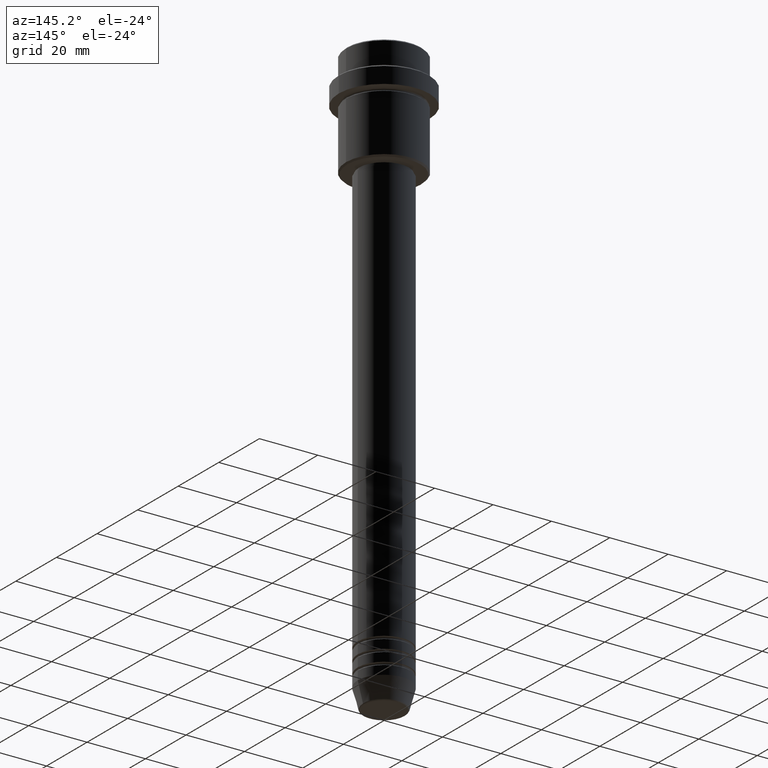
[diagram: clean part render]
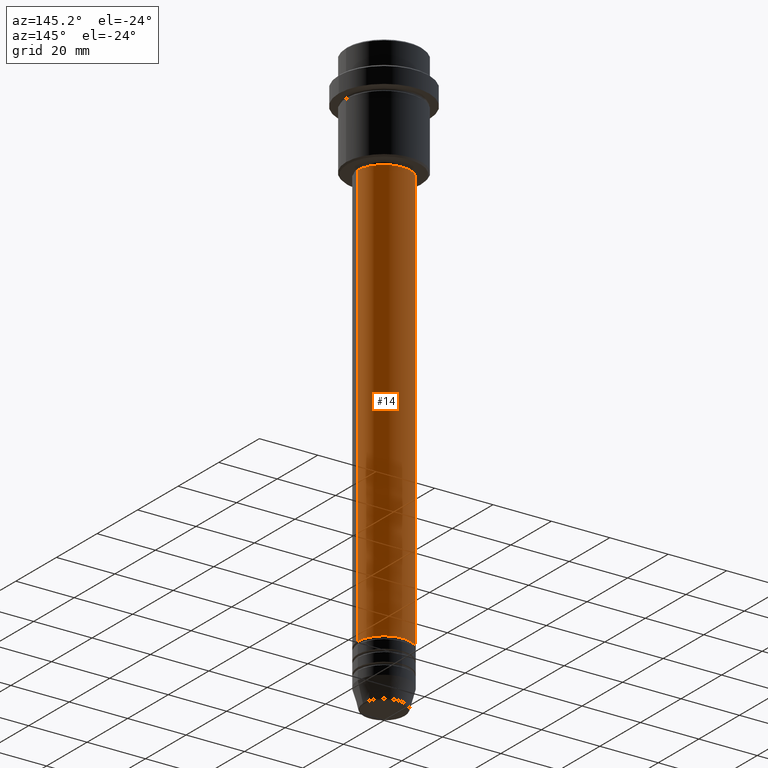
[diagram: same view with one face highlighted and labeled with its STEP entity id]
A machine part, auxiliary view. The second image highlights one B-rep face of the part: STEP entity #14.
In plain terms, the highlighted cylindrical surface (edge-blend (fillet) strip) has radius 9 mm, axis along (-0, -0, 1).
Its self-contained STEP definition (entity closure, byte-faithful):
#2 = CARTESIAN_POINT ( 'NONE',  ( 9.000000000000000000, 0.000000000000000000, -181.9999999999998863 ) ) ;
#14 = ADVANCED_FACE ( 'NONE', ( #341 ), #676, .T. ) ;
#49 = VERTEX_POINT ( 'NONE', #2 ) ;
#67 = ORIENTED_EDGE ( 'NONE', *, *, #829, .T. ) ;
#70 = ORIENTED_EDGE ( 'NONE', *, *, #978, .F. ) ;
#73 = CIRCLE ( 'NONE', #1401, 9.000000000000001776 ) ;
#89 = EDGE_CURVE ( 'NONE', #225, #455, #1360, .T. ) ;
#150 = CARTESIAN_POINT ( 'NONE',  ( -9.000000000000001776, 1.102182119232617911E-15, 0.000000000000000000 ) ) ;
#180 = CARTESIAN_POINT ( 'NONE',  ( 0.000000000000000000, 0.000000000000000000, -181.9999999999998863 ) ) ;
#189 = DIRECTION ( 'NONE',  ( 1.000000000000000000, 0.000000000000000000, 0.000000000000000000 ) ) ;
#225 = VERTEX_POINT ( 'NONE', #1378 ) ;
#299 = LINE ( 'NONE', #1373, #1173 ) ;
#329 = EDGE_CURVE ( 'NONE', #1353, #455, #73, .T. ) ;
#341 = FACE_OUTER_BOUND ( 'NONE', #481, .T. ) ;
#417 = DIRECTION ( 'NONE',  ( -0.000000000000000000, -0.000000000000000000, 1.000000000000000000 ) ) ;
#455 = VERTEX_POINT ( 'NONE', #545 ) ;
#481 = EDGE_LOOP ( 'NONE', ( #67, #796, #541, #70 ) ) ;
#498 = DIRECTION ( 'NONE',  ( -0.000000000000000000, -0.000000000000000000, 1.000000000000000000 ) ) ;
#521 = DIRECTION ( 'NONE',  ( -0.000000000000000000, -0.000000000000000000, 1.000000000000000000 ) ) ;
#541 = ORIENTED_EDGE ( 'NONE', *, *, #329, .F. ) ;
#545 = CARTESIAN_POINT ( 'NONE',  ( -9.000000000000001776, 1.102182119232617911E-15, -37.00000000000000711 ) ) ;
#619 = DIRECTION ( 'NONE',  ( 1.000000000000000000, 0.000000000000000000, 0.000000000000000000 ) ) ;
#654 = AXIS2_PLACEMENT_3D ( 'NONE', #180, #417, #619 ) ;
#676 = CYLINDRICAL_SURFACE ( 'NONE', #1311, 9.000000000000001776 ) ;
#744 = CIRCLE ( 'NONE', #654, 9.000000000000000000 ) ;
#796 = ORIENTED_EDGE ( 'NONE', *, *, #89, .T. ) ;
#829 = EDGE_CURVE ( 'NONE', #49, #225, #744, .T. ) ;
#970 = CARTESIAN_POINT ( 'NONE',  ( 0.000000000000000000, 0.000000000000000000, -37.00000000000000711 ) ) ;
#978 = EDGE_CURVE ( 'NONE', #49, #1353, #299, .T. ) ;
#1004 = DIRECTION ( 'NONE',  ( -0.000000000000000000, -0.000000000000000000, 1.000000000000000000 ) ) ;
#1076 = DIRECTION ( 'NONE',  ( -0.000000000000000000, -0.000000000000000000, 1.000000000000000000 ) ) ;
#1173 = VECTOR ( 'NONE', #1076, 1000.000000000000000 ) ;
#1311 = AXIS2_PLACEMENT_3D ( 'NONE', #1325, #1004, #1339 ) ;
#1325 = CARTESIAN_POINT ( 'NONE',  ( 0.000000000000000000, 0.000000000000000000, 0.000000000000000000 ) ) ;
#1339 = DIRECTION ( 'NONE',  ( 1.000000000000000000, 0.000000000000000000, 0.000000000000000000 ) ) ;
#1350 = CARTESIAN_POINT ( 'NONE',  ( 9.000000000000001776, 0.000000000000000000, -37.00000000000000711 ) ) ;
#1352 = VECTOR ( 'NONE', #498, 1000.000000000000000 ) ;
#1353 = VERTEX_POINT ( 'NONE', #1350 ) ;
#1360 = LINE ( 'NONE', #150, #1352 ) ;
#1373 = CARTESIAN_POINT ( 'NONE',  ( 9.000000000000001776, 0.000000000000000000, 0.000000000000000000 ) ) ;
#1378 = CARTESIAN_POINT ( 'NONE',  ( -9.000000000000000000, 1.102182119232617714E-15, -181.9999999999998863 ) ) ;
#1401 = AXIS2_PLACEMENT_3D ( 'NONE', #970, #521, #189 ) ;